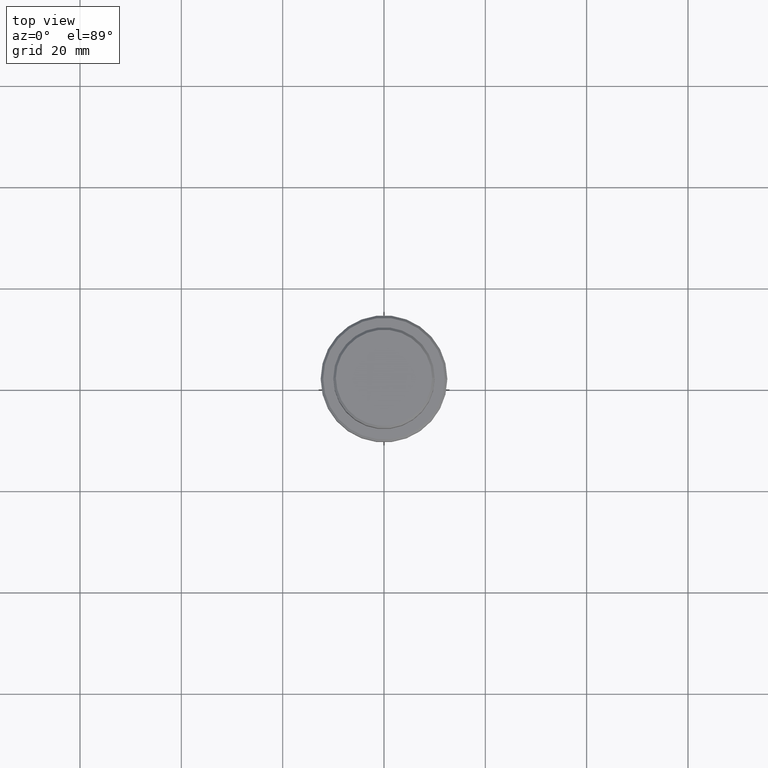
[diagram: clean part render]
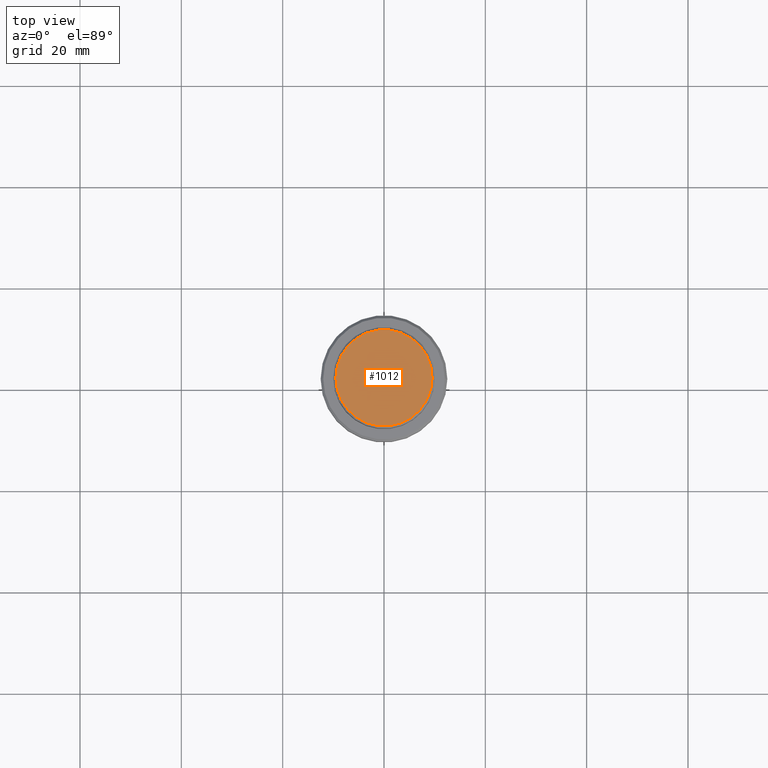
[diagram: same view with one face highlighted and labeled with its STEP entity id]
A machine part, top view. The second image highlights one B-rep face of the part: STEP entity #1012.
In plain terms, the highlighted planar face has unit normal (0, -0, 1).
Its self-contained STEP definition (entity closure, byte-faithful):
#141 = ORIENTED_EDGE ( 'NONE', *, *, #228, .T. ) ;
#169 = CIRCLE ( 'NONE', #537, 9.500000000000008882 ) ;
#225 = DIRECTION ( 'NONE',  ( -0.000000000000000000, -0.000000000000000000, 1.000000000000000000 ) ) ;
#228 = EDGE_CURVE ( 'NONE', #1251, #1070, #169, .T. ) ;
#236 = DIRECTION ( 'NONE',  ( 0.000000000000000000, -0.000000000000000000, 1.000000000000000000 ) ) ;
#442 = DIRECTION ( 'NONE',  ( -0.000000000000000000, -0.000000000000000000, 1.000000000000000000 ) ) ;
#537 = AXIS2_PLACEMENT_3D ( 'NONE', #778, #442, #1300 ) ;
#570 = PLANE ( 'NONE',  #690 ) ;
#666 = DIRECTION ( 'NONE',  ( 1.000000000000000000, 0.000000000000000000, 0.000000000000000000 ) ) ;
#674 = CARTESIAN_POINT ( 'NONE',  ( 0.000000000000000000, 0.000000000000000000, 0.000000000000000000 ) ) ;
#690 = AXIS2_PLACEMENT_3D ( 'NONE', #674, #236, #666 ) ;
#778 = CARTESIAN_POINT ( 'NONE',  ( 0.000000000000000000, 0.000000000000000000, 0.000000000000000000 ) ) ;
#780 = AXIS2_PLACEMENT_3D ( 'NONE', #1286, #225, #1181 ) ;
#954 = CARTESIAN_POINT ( 'NONE',  ( 9.500000000000008882, 1.194030629168669864E-15, 0.000000000000000000 ) ) ;
#1012 = ADVANCED_FACE ( 'NONE', ( #1210 ), #570, .T. ) ;
#1070 = VERTEX_POINT ( 'NONE', #1175 ) ;
#1073 = ORIENTED_EDGE ( 'NONE', *, *, #1211, .T. ) ;
#1175 = CARTESIAN_POINT ( 'NONE',  ( -9.500000000000008882, 0.000000000000000000, 0.000000000000000000 ) ) ;
#1181 = DIRECTION ( 'NONE',  ( 1.000000000000000000, 0.000000000000000000, 0.000000000000000000 ) ) ;
#1210 = FACE_OUTER_BOUND ( 'NONE', #1252, .T. ) ;
#1211 = EDGE_CURVE ( 'NONE', #1070, #1251, #1398, .T. ) ;
#1251 = VERTEX_POINT ( 'NONE', #954 ) ;
#1252 = EDGE_LOOP ( 'NONE', ( #1073, #141 ) ) ;
#1286 = CARTESIAN_POINT ( 'NONE',  ( 0.000000000000000000, 0.000000000000000000, 0.000000000000000000 ) ) ;
#1300 = DIRECTION ( 'NONE',  ( 1.000000000000000000, 0.000000000000000000, 0.000000000000000000 ) ) ;
#1398 = CIRCLE ( 'NONE', #780, 9.500000000000008882 ) ;